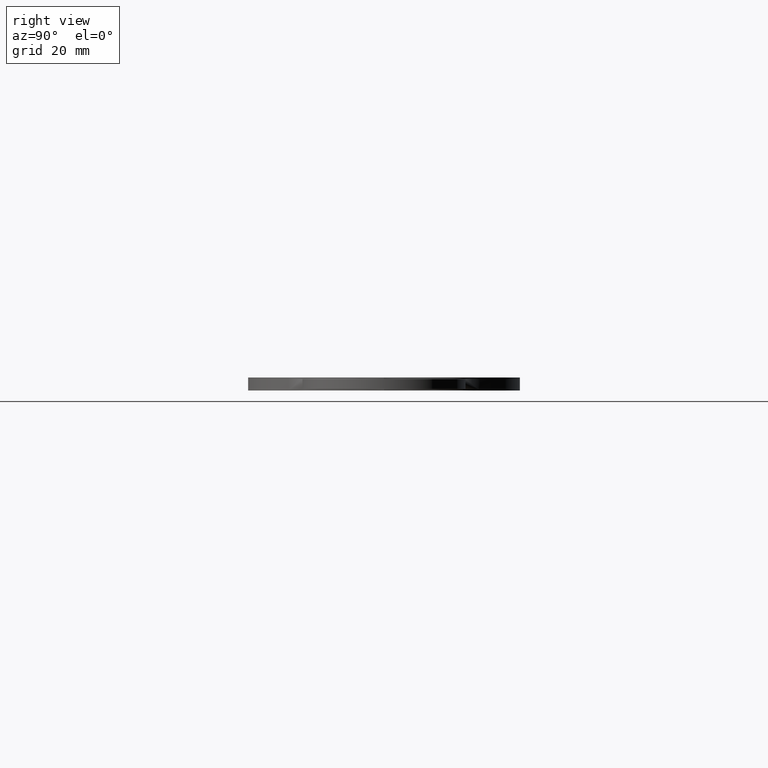
[diagram: clean part render]
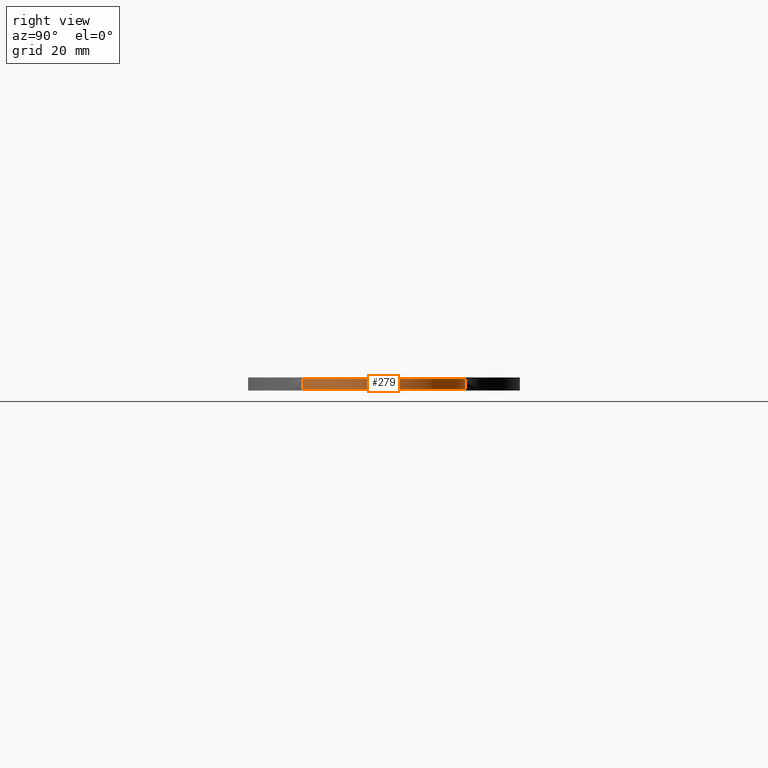
[diagram: same view with one face highlighted and labeled with its STEP entity id]
A machine part, right view. The second image highlights one B-rep face of the part: STEP entity #279.
In plain terms, the highlighted cylindrical surface (partial cylindrical patch) has radius 19.05 mm, axis along (0, 0, 1).
Its self-contained STEP definition (entity closure, byte-faithful):
#252=AXIS2_PLACEMENT_3D('Cylinder Axis2P3D',#249,#250,#251) ;
#256=AXIS2_PLACEMENT_3D('Circle Axis2P3D',#254,#255,$) ;
#270=AXIS2_PLACEMENT_3D('Circle Axis2P3D',#268,#269,$) ;
#227=CARTESIAN_POINT('Vertex',(4.25000000002,-0.750000000003,-0.0450000000002)) ;
#230=CARTESIAN_POINT('Line Origine',(4.25000000002,-0.750000000003,0.)) ;
#234=CARTESIAN_POINT('Vertex',(4.25000000002,-0.750000000003,0.0450000000002)) ;
#249=CARTESIAN_POINT('Axis2P3D Location',(4.25000000002,0.,0.)) ;
#254=CARTESIAN_POINT('Axis2P3D Location',(4.25000000002,0.,-0.0450000000002)) ;
#258=CARTESIAN_POINT('Vertex',(4.25000000002,0.750000000003,-0.0450000000002)) ;
#261=CARTESIAN_POINT('Line Origine',(4.25000000002,0.750000000003,0.)) ;
#265=CARTESIAN_POINT('Vertex',(4.25000000002,0.750000000003,0.0450000000002)) ;
#268=CARTESIAN_POINT('Axis2P3D Location',(4.25000000002,0.,0.0450000000002)) ;
#231=DIRECTION('Vector Direction',(0.,0.,0.0393700787402)) ;
#250=DIRECTION('Axis2P3D Direction',(0.,0.,0.0393700787402)) ;
#251=DIRECTION('Axis2P3D XDirection',(-7.2321661367E-018,-0.0393700787402,-0.)) ;
#255=DIRECTION('Axis2P3D Direction',(0.,0.,0.0393700787402)) ;
#262=DIRECTION('Vector Direction',(0.,0.,0.0393700787402)) ;
#269=DIRECTION('Axis2P3D Direction',(0.,0.,0.0393700787402)) ;
#232=VECTOR('Line Direction',#231,0.0393700787402) ;
#263=VECTOR('Line Direction',#262,0.0393700787402) ;
#274=ORIENTED_EDGE('',*,*,#236,.F.) ;
#275=ORIENTED_EDGE('',*,*,#260,.T.) ;
#276=ORIENTED_EDGE('',*,*,#267,.T.) ;
#277=ORIENTED_EDGE('',*,*,#272,.F.) ;
#279=ADVANCED_FACE('PartBody',(#278),#253,.T.) ;
#257=CIRCLE('generated circle',#256,0.750000000003) ;
#271=CIRCLE('generated circle',#270,0.750000000003) ;
#253=CYLINDRICAL_SURFACE('generated cylinder',#252,0.750000000003) ;
#236=EDGE_CURVE('',#228,#235,#233,.T.) ;
#260=EDGE_CURVE('',#228,#259,#257,.T.) ;
#267=EDGE_CURVE('',#259,#266,#264,.T.) ;
#272=EDGE_CURVE('',#235,#266,#271,.T.) ;
#273=EDGE_LOOP('',(#274,#275,#276,#277)) ;
#278=FACE_OUTER_BOUND('',#273,.T.) ;
#233=LINE('Line',#230,#232) ;
#264=LINE('Line',#261,#263) ;
#228=VERTEX_POINT('',#227) ;
#235=VERTEX_POINT('',#234) ;
#259=VERTEX_POINT('',#258) ;
#266=VERTEX_POINT('',#265) ;